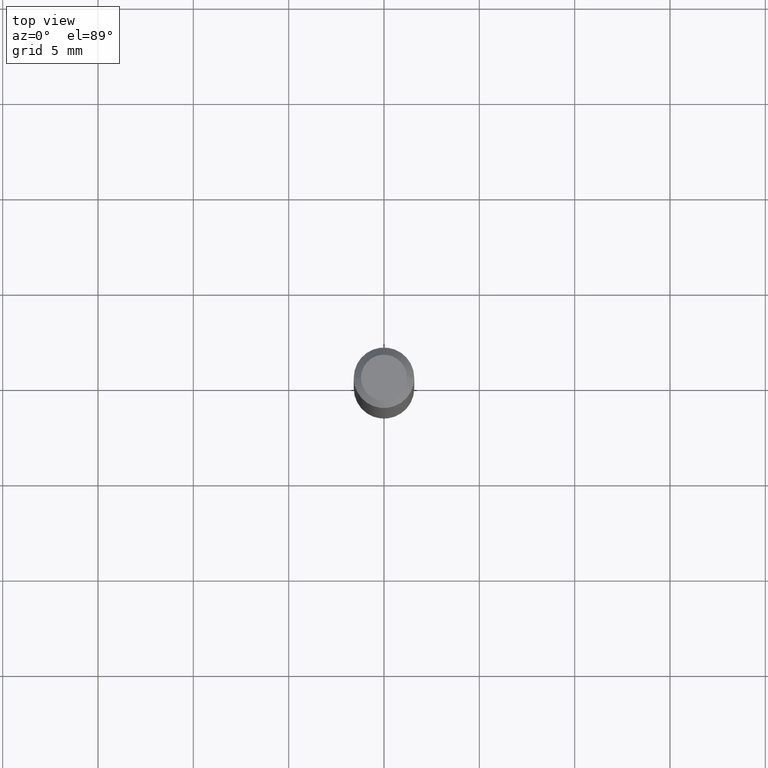
[diagram: clean part render]
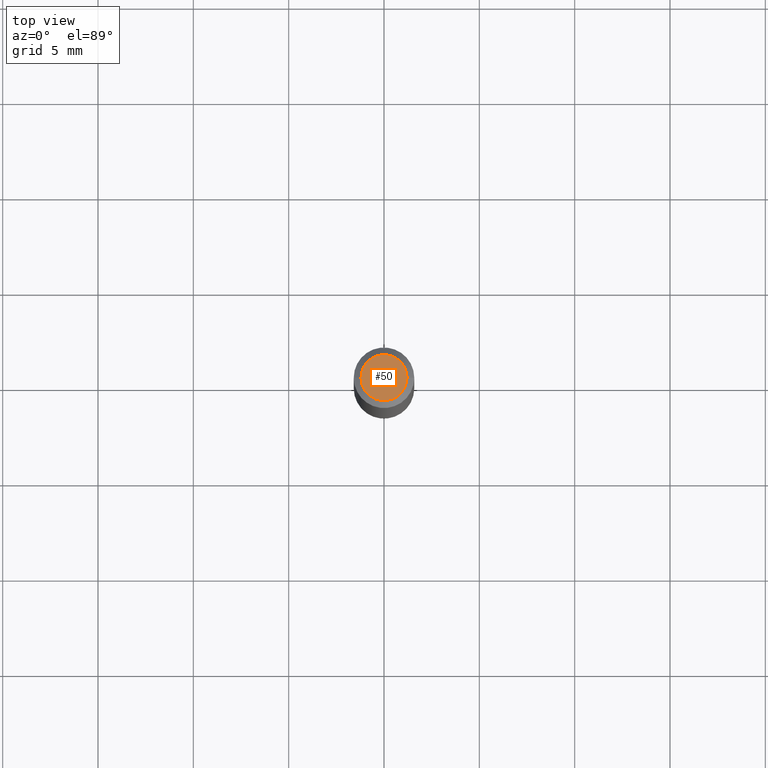
[diagram: same view with one face highlighted and labeled with its STEP entity id]
A machine part, top view. The second image highlights one B-rep face of the part: STEP entity #50.
In plain terms, the highlighted planar face has unit normal (0, -0, -1).
Its self-contained STEP definition (entity closure, byte-faithful):
#33 = DIRECTION ( 'NONE',  ( 1.000000000000000000, -6.982962677686267499E-15, 4.852736867747366768E-29 ) ) ;
#41 = EDGE_CURVE ( 'NONE', #141, #320, #372, .T. ) ;
#50 = ADVANCED_FACE ( 'NONE', ( #71 ), #76, .F. ) ;
#71 = FACE_OUTER_BOUND ( 'NONE', #407, .T. ) ;
#76 = PLANE ( 'NONE',  #224 ) ;
#104 = CARTESIAN_POINT ( 'NONE',  ( 0.04749999999999999362, -4.035134999187584047E-16, -2.863788329398937336E-16 ) ) ;
#141 = VERTEX_POINT ( 'NONE', #104 ) ;
#142 = CIRCLE ( 'NONE', #359, 0.04749999999999999362 ) ;
#147 = EDGE_CURVE ( 'NONE', #320, #141, #142, .T. ) ;
#152 = ORIENTED_EDGE ( 'NONE', *, *, #41, .T. ) ;
#169 = DIRECTION ( 'NONE',  ( -1.000000000000000000, 6.982962677686265922E-15, -4.876176775795935793E-29 ) ) ;
#170 = CARTESIAN_POINT ( 'NONE',  ( 3.316907271900976096E-16, 0.04749999999999999362, -3.090347800649974958E-16 ) ) ;
#195 = DIRECTION ( 'NONE',  ( -2.445468806185136597E-29, 3.491481338843145583E-15, 1.000000000000000000 ) ) ;
#224 = AXIS2_PLACEMENT_3D ( 'NONE', #170, #375, #169 ) ;
#235 = CARTESIAN_POINT ( 'NONE',  ( 7.003305027062207074E-45, -9.998863510493265527E-31, -2.863788329398962481E-16 ) ) ;
#274 = ORIENTED_EDGE ( 'NONE', *, *, #147, .T. ) ;
#280 = DIRECTION ( 'NONE',  ( 1.000000000000000000, -6.982962677686267499E-15, 4.852736867747366768E-29 ) ) ;
#283 = AXIS2_PLACEMENT_3D ( 'NONE', #235, #195, #33 ) ;
#320 = VERTEX_POINT ( 'NONE', #458 ) ;
#359 = AXIS2_PLACEMENT_3D ( 'NONE', #390, #382, #280 ) ;
#372 = CIRCLE ( 'NONE', #283, 0.04749999999999999362 ) ;
#375 = DIRECTION ( 'NONE',  ( 2.438088387897960049E-29, -3.491481338843145188E-15, -1.000000000000000000 ) ) ;
#382 = DIRECTION ( 'NONE',  ( -2.445468806185136597E-29, 3.491481338843145583E-15, 1.000000000000000000 ) ) ;
#390 = CARTESIAN_POINT ( 'NONE',  ( 7.003305027062207074E-45, -9.998863510493265527E-31, -2.863788329398962481E-16 ) ) ;
#407 = EDGE_LOOP ( 'NONE', ( #274, #152 ) ) ;
#458 = CARTESIAN_POINT ( 'NONE',  ( -0.04749999999999999362, 3.578768372314205575E-16, -2.863788329398987133E-16 ) ) ;